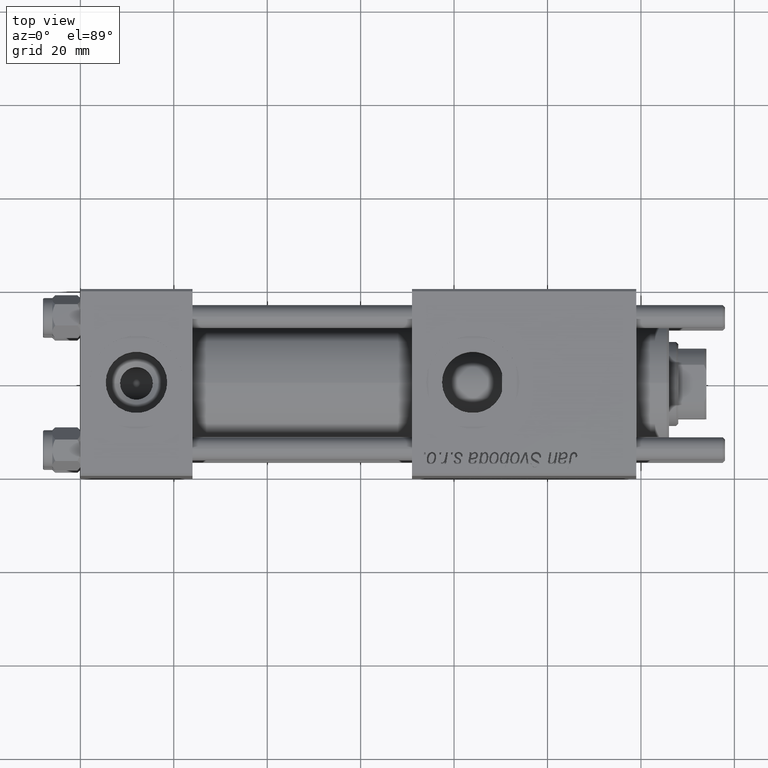
[diagram: clean part render]
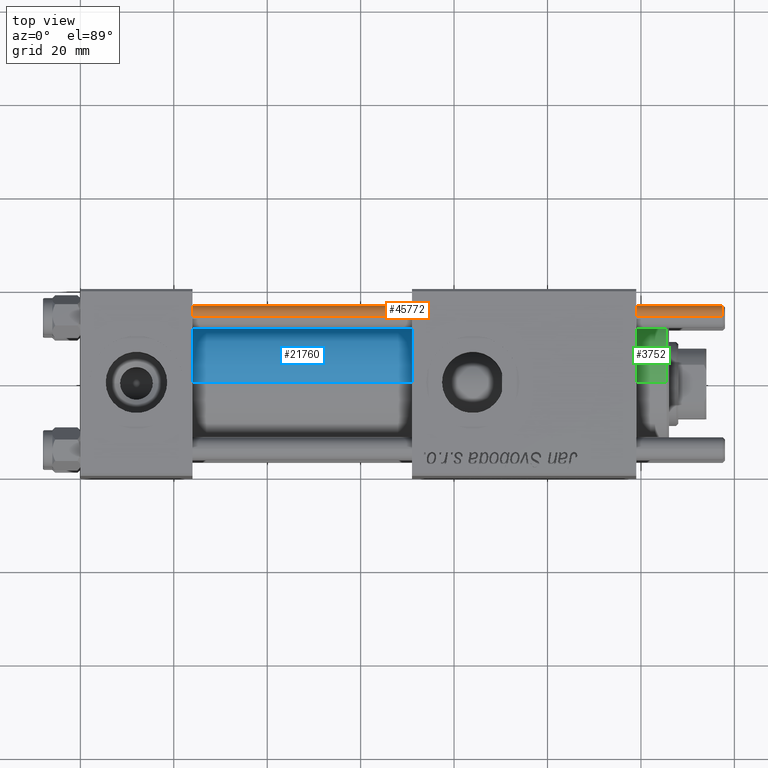
[diagram: same view with three faces highlighted in distinct colors, each labeled with its STEP entity id]
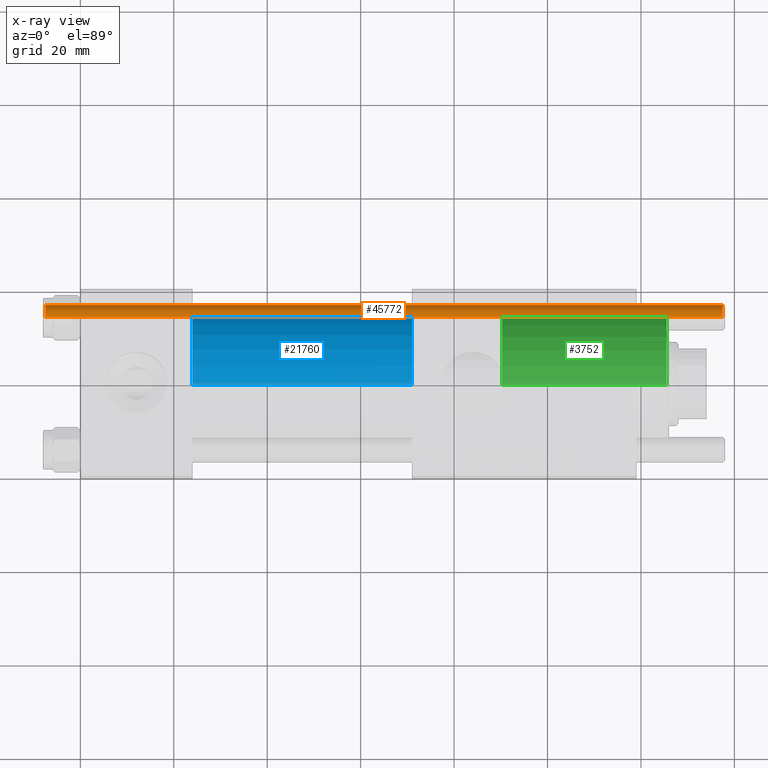
[diagram: x-ray of the same camera — body ghosted, the three highlighted faces saturated]
A machine part, top view with three faces highlighted in distinct colors.
The next image is the same camera in x-ray (body ghosted, the three faces saturated) — at least one of them is partly hidden behind the body in this view.
Their STEP definitions:

[orange] entity #45772 — the highlighted cylindrical surface (edge-blend (fillet) strip) has radius 2.5 mm, axis along (1, -0, -0).
#764 = VECTOR ( 'NONE', #5032, 1000.000000000000000 ) ;
#2696 = CIRCLE ( 'NONE', #28355, 2.500000000000000000 ) ;
#3171 = CARTESIAN_POINT ( 'NONE',  ( 0.000000000000000000, 0.000000000000000000, 145.5000000000000284 ) ) ;
#4891 = VERTEX_POINT ( 'NONE', #51105 ) ;
#5032 = DIRECTION ( 'NONE',  ( -0.000000000000000000, -0.000000000000000000, -1.000000000000000000 ) ) ;
#9529 = DIRECTION ( 'NONE',  ( -1.000000000000000000, 0.000000000000000000, 0.000000000000000000 ) ) ;
#10928 = LINE ( 'NONE', #51315, #24609 ) ;
#13377 = ORIENTED_EDGE ( 'NONE', *, *, #46584, .T. ) ;
#13514 = EDGE_CURVE ( 'NONE', #55404, #4891, #29817, .T. ) ;
#19626 = VERTEX_POINT ( 'NONE', #42199 ) ;
#20660 = DIRECTION ( 'NONE',  ( 0.000000000000000000, 0.000000000000000000, -1.000000000000000000 ) ) ;
#21606 = AXIS2_PLACEMENT_3D ( 'NONE', #49957, #45102, #36215 ) ;
#24042 = CARTESIAN_POINT ( 'NONE',  ( 2.500000000000000000, 3.061616997868383141E-16, 0.5000000000000559552 ) ) ;
#24609 = VECTOR ( 'NONE', #37850, 1000.000000000000000 ) ;
#25556 = EDGE_CURVE ( 'NONE', #19626, #55404, #44875, .T. ) ;
#28355 = AXIS2_PLACEMENT_3D ( 'NONE', #3171, #20660, #51039 ) ;
#29817 = CIRCLE ( 'NONE', #21606, 2.500000000000000000 ) ;
#31040 = CARTESIAN_POINT ( 'NONE',  ( 0.000000000000000000, 0.000000000000000000, 146.0000000000000000 ) ) ;
#31503 = EDGE_CURVE ( 'NONE', #39378, #4891, #10928, .T. ) ;
#32608 = EDGE_LOOP ( 'NONE', ( #13377, #52754, #35501, #47892 ) ) ;
#35501 = ORIENTED_EDGE ( 'NONE', *, *, #13514, .T. ) ;
#35896 = FACE_OUTER_BOUND ( 'NONE', #32608, .T. ) ;
#36215 = DIRECTION ( 'NONE',  ( 1.000000000000000000, 0.000000000000000000, 0.000000000000000000 ) ) ;
#37850 = DIRECTION ( 'NONE',  ( -0.000000000000000000, -0.000000000000000000, -1.000000000000000000 ) ) ;
#39378 = VERTEX_POINT ( 'NONE', #55374 ) ;
#42199 = CARTESIAN_POINT ( 'NONE',  ( 2.500000000000000000, 3.061616997868383141E-16, 145.5000000000000284 ) ) ;
#44875 = LINE ( 'NONE', #54039, #764 ) ;
#45102 = DIRECTION ( 'NONE',  ( -0.000000000000000000, -0.000000000000000000, 1.000000000000000000 ) ) ;
#45772 = ADVANCED_FACE ( 'NONE', ( #35896 ), #53659, .T. ) ;
#46584 = EDGE_CURVE ( 'NONE', #39378, #19626, #2696, .T. ) ;
#47892 = ORIENTED_EDGE ( 'NONE', *, *, #31503, .F. ) ;
#49957 = CARTESIAN_POINT ( 'NONE',  ( 0.000000000000000000, 0.000000000000000000, 0.5000000000000559552 ) ) ;
#51039 = DIRECTION ( 'NONE',  ( 1.000000000000000000, 0.000000000000000000, 0.000000000000000000 ) ) ;
#51105 = CARTESIAN_POINT ( 'NONE',  ( -2.500000000000000000, 0.000000000000000000, 0.5000000000000559552 ) ) ;
#51315 = CARTESIAN_POINT ( 'NONE',  ( -2.500000000000000000, 0.000000000000000000, 146.0000000000000000 ) ) ;
#52144 = AXIS2_PLACEMENT_3D ( 'NONE', #31040, #52540, #9529 ) ;
#52540 = DIRECTION ( 'NONE',  ( -0.000000000000000000, -0.000000000000000000, -1.000000000000000000 ) ) ;
#52754 = ORIENTED_EDGE ( 'NONE', *, *, #25556, .T. ) ;
#53659 = CYLINDRICAL_SURFACE ( 'NONE', #52144, 2.500000000000000000 ) ;
#54039 = CARTESIAN_POINT ( 'NONE',  ( 2.500000000000000000, 3.061616997868383141E-16, 146.0000000000000000 ) ) ;
#55374 = CARTESIAN_POINT ( 'NONE',  ( -2.500000000000000000, 0.000000000000000000, 145.5000000000000284 ) ) ;
#55404 = VERTEX_POINT ( 'NONE', #24042 ) ;

[blue] entity #21760 — the highlighted cylindrical surface (partial cylindrical patch) has radius 15.5 mm, axis along (-1, -0, -0).
#1422 = VECTOR ( 'NONE', #31116, 1000.000000000000000 ) ;
#1509 = DIRECTION ( 'NONE',  ( 1.000000000000000000, 0.000000000000000000, 0.000000000000000000 ) ) ;
#1793 = CARTESIAN_POINT ( 'NONE',  ( 24.00000000000000000, -2.602085213965210642E-15, 0.000000000000000000 ) ) ;
#4963 = VECTOR ( 'NONE', #19312, 1000.000000000000000 ) ;
#5014 = LINE ( 'NONE', #35690, #1422 ) ;
#5556 = CARTESIAN_POINT ( 'NONE',  ( 71.00000000000001421, -7.038826752868131828E-16, -15.50000000000000000 ) ) ;
#5599 = ORIENTED_EDGE ( 'NONE', *, *, #44737, .T. ) ;
#8468 = ORIENTED_EDGE ( 'NONE', *, *, #16178, .F. ) ;
#10713 = AXIS2_PLACEMENT_3D ( 'NONE', #30142, #52503, #48187 ) ;
#11537 = CIRCLE ( 'NONE', #35320, 15.50000000000000000 ) ;
#12553 = AXIS2_PLACEMENT_3D ( 'NONE', #1793, #28152, #16376 ) ;
#12626 = CARTESIAN_POINT ( 'NONE',  ( 24.00000000000000000, -7.038826752868131828E-16, -15.50000000000000000 ) ) ;
#16178 = EDGE_CURVE ( 'NONE', #32542, #49509, #5014, .T. ) ;
#16376 = DIRECTION ( 'NONE',  ( 0.000000000000000000, 0.000000000000000000, 1.000000000000000000 ) ) ;
#18257 = EDGE_CURVE ( 'NONE', #47883, #32542, #11537, .T. ) ;
#18993 = DIRECTION ( 'NONE',  ( 0.000000000000000000, 0.000000000000000000, -1.000000000000000000 ) ) ;
#19312 = DIRECTION ( 'NONE',  ( -1.000000000000000000, -0.000000000000000000, -0.000000000000000000 ) ) ;
#20434 = CARTESIAN_POINT ( 'NONE',  ( 24.00000000000000000, -2.602085213965210642E-15, 15.50000000000000000 ) ) ;
#21240 = ORIENTED_EDGE ( 'NONE', *, *, #18257, .F. ) ;
#21620 = EDGE_CURVE ( 'NONE', #23867, #49509, #51007, .T. ) ;
#21760 = ADVANCED_FACE ( 'NONE', ( #48469 ), #30720, .T. ) ;
#23867 = VERTEX_POINT ( 'NONE', #12626 ) ;
#28075 = ORIENTED_EDGE ( 'NONE', *, *, #21620, .T. ) ;
#28152 = DIRECTION ( 'NONE',  ( 1.000000000000000000, 0.000000000000000000, 0.000000000000000000 ) ) ;
#30142 = CARTESIAN_POINT ( 'NONE',  ( 71.00000000000001421, -2.602085213965210642E-15, 0.000000000000000000 ) ) ;
#30720 = CYLINDRICAL_SURFACE ( 'NONE', #10713, 15.50000000000000000 ) ;
#31116 = DIRECTION ( 'NONE',  ( -1.000000000000000000, -0.000000000000000000, -0.000000000000000000 ) ) ;
#32189 = CARTESIAN_POINT ( 'NONE',  ( 71.00000000000001421, -2.602085213965210642E-15, 0.000000000000000000 ) ) ;
#32542 = VERTEX_POINT ( 'NONE', #47323 ) ;
#35320 = AXIS2_PLACEMENT_3D ( 'NONE', #32189, #1509, #18993 ) ;
#35690 = CARTESIAN_POINT ( 'NONE',  ( 71.00000000000001421, -2.602085213965210642E-15, 15.50000000000000000 ) ) ;
#35850 = EDGE_LOOP ( 'NONE', ( #21240, #5599, #28075, #8468 ) ) ;
#40817 = LINE ( 'NONE', #54560, #4963 ) ;
#44737 = EDGE_CURVE ( 'NONE', #47883, #23867, #40817, .T. ) ;
#47323 = CARTESIAN_POINT ( 'NONE',  ( 71.00000000000001421, -2.602085213965210642E-15, 15.50000000000000000 ) ) ;
#47883 = VERTEX_POINT ( 'NONE', #5556 ) ;
#48187 = DIRECTION ( 'NONE',  ( 0.000000000000000000, 0.000000000000000000, 1.000000000000000000 ) ) ;
#48469 = FACE_OUTER_BOUND ( 'NONE', #35850, .T. ) ;
#49509 = VERTEX_POINT ( 'NONE', #20434 ) ;
#51007 = CIRCLE ( 'NONE', #12553, 15.50000000000000000 ) ;
#52503 = DIRECTION ( 'NONE',  ( -1.000000000000000000, -0.000000000000000000, -0.000000000000000000 ) ) ;
#54560 = CARTESIAN_POINT ( 'NONE',  ( 71.00000000000001421, -7.038826752868131828E-16, -15.50000000000000000 ) ) ;

[green] entity #3752 — the highlighted cylindrical surface (partial cylindrical patch) has radius 15 mm, axis along (-1, -0, 0).
#2589 = CARTESIAN_POINT ( 'NONE',  ( 0.000000000000000000, 0.000000000000000000, 28.69999999999999929 ) ) ;
#2732 = AXIS2_PLACEMENT_3D ( 'NONE', #35040, #33893, #29576 ) ;
#3752 = ADVANCED_FACE ( 'NONE', ( #50751 ), #16340, .T. ) ;
#5455 = EDGE_CURVE ( 'NONE', #55922, #46529, #11086, .T. ) ;
#6154 = DIRECTION ( 'NONE',  ( 1.000000000000000000, 0.000000000000000000, 0.000000000000000000 ) ) ;
#6779 = DIRECTION ( 'NONE',  ( -0.000000000000000000, -0.000000000000000000, -1.000000000000000000 ) ) ;
#9252 = ORIENTED_EDGE ( 'NONE', *, *, #37305, .T. ) ;
#9714 = CARTESIAN_POINT ( 'NONE',  ( -15.00000000000000000, 0.000000000000000000, 28.69999999999999929 ) ) ;
#11086 = LINE ( 'NONE', #38001, #13369 ) ;
#13369 = VECTOR ( 'NONE', #6779, 1000.000000000000000 ) ;
#13734 = LINE ( 'NONE', #9714, #19222 ) ;
#16340 = CYLINDRICAL_SURFACE ( 'NONE', #55497, 15.00000000000000000 ) ;
#18227 = CARTESIAN_POINT ( 'NONE',  ( -15.00000000000000000, 0.000000000000000000, 0.000000000000000000 ) ) ;
#19064 = VERTEX_POINT ( 'NONE', #18227 ) ;
#19222 = VECTOR ( 'NONE', #40388, 1000.000000000000000 ) ;
#19304 = CIRCLE ( 'NONE', #22051, 15.00000000000000000 ) ;
#22051 = AXIS2_PLACEMENT_3D ( 'NONE', #53750, #35709, #6154 ) ;
#24704 = CIRCLE ( 'NONE', #2732, 15.00000000000000000 ) ;
#26892 = ORIENTED_EDGE ( 'NONE', *, *, #5455, .T. ) ;
#29250 = CARTESIAN_POINT ( 'NONE',  ( 15.00000000000000000, 1.836970198721029589E-15, 35.19999999999999574 ) ) ;
#29527 = DIRECTION ( 'NONE',  ( -0.000000000000000000, -0.000000000000000000, -1.000000000000000000 ) ) ;
#29576 = DIRECTION ( 'NONE',  ( 1.000000000000000000, 0.000000000000000000, 0.000000000000000000 ) ) ;
#33289 = CARTESIAN_POINT ( 'NONE',  ( 15.00000000000000000, 1.836970198721029589E-15, 0.000000000000000000 ) ) ;
#33893 = DIRECTION ( 'NONE',  ( 0.000000000000000000, 0.000000000000000000, 1.000000000000000000 ) ) ;
#34381 = EDGE_CURVE ( 'NONE', #40244, #19064, #13734, .T. ) ;
#35040 = CARTESIAN_POINT ( 'NONE',  ( 0.000000000000000000, 0.000000000000000000, 0.000000000000000000 ) ) ;
#35709 = DIRECTION ( 'NONE',  ( 0.000000000000000000, 0.000000000000000000, -1.000000000000000000 ) ) ;
#36661 = ORIENTED_EDGE ( 'NONE', *, *, #52023, .T. ) ;
#37305 = EDGE_CURVE ( 'NONE', #40244, #55922, #19304, .T. ) ;
#38001 = CARTESIAN_POINT ( 'NONE',  ( 15.00000000000000000, 1.836970198721029589E-15, 28.69999999999999929 ) ) ;
#38222 = ORIENTED_EDGE ( 'NONE', *, *, #34381, .F. ) ;
#40244 = VERTEX_POINT ( 'NONE', #54420 ) ;
#40388 = DIRECTION ( 'NONE',  ( -0.000000000000000000, -0.000000000000000000, -1.000000000000000000 ) ) ;
#41047 = EDGE_LOOP ( 'NONE', ( #9252, #26892, #36661, #38222 ) ) ;
#46529 = VERTEX_POINT ( 'NONE', #33289 ) ;
#50751 = FACE_OUTER_BOUND ( 'NONE', #41047, .T. ) ;
#52023 = EDGE_CURVE ( 'NONE', #46529, #19064, #24704, .T. ) ;
#53750 = CARTESIAN_POINT ( 'NONE',  ( 0.000000000000000000, 0.000000000000000000, 35.19999999999999574 ) ) ;
#54420 = CARTESIAN_POINT ( 'NONE',  ( -15.00000000000000000, 0.000000000000000000, 35.19999999999999574 ) ) ;
#55059 = DIRECTION ( 'NONE',  ( -1.000000000000000000, 0.000000000000000000, 0.000000000000000000 ) ) ;
#55497 = AXIS2_PLACEMENT_3D ( 'NONE', #2589, #29527, #55059 ) ;
#55922 = VERTEX_POINT ( 'NONE', #29250 ) ;